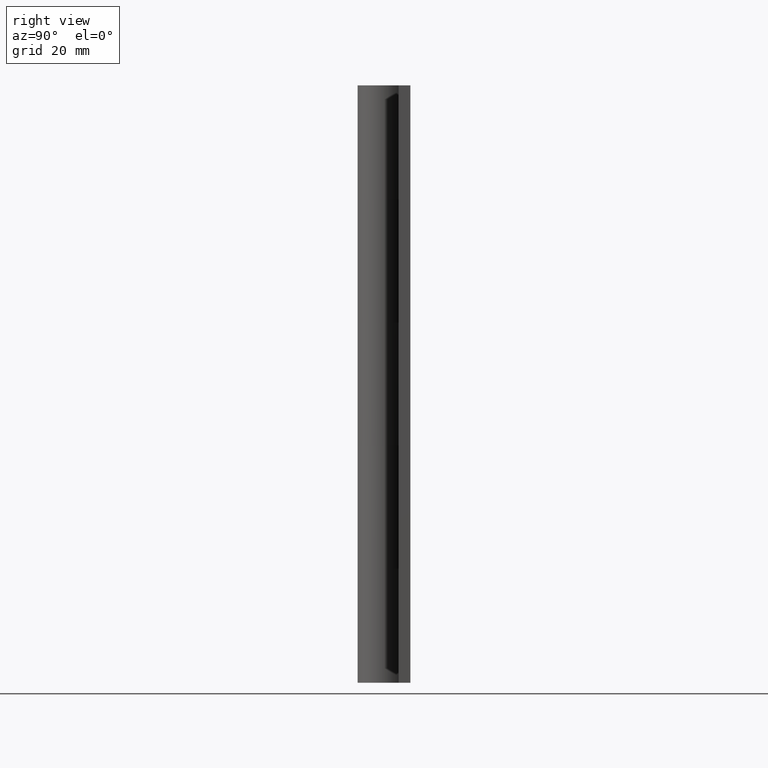
[diagram: clean part render]
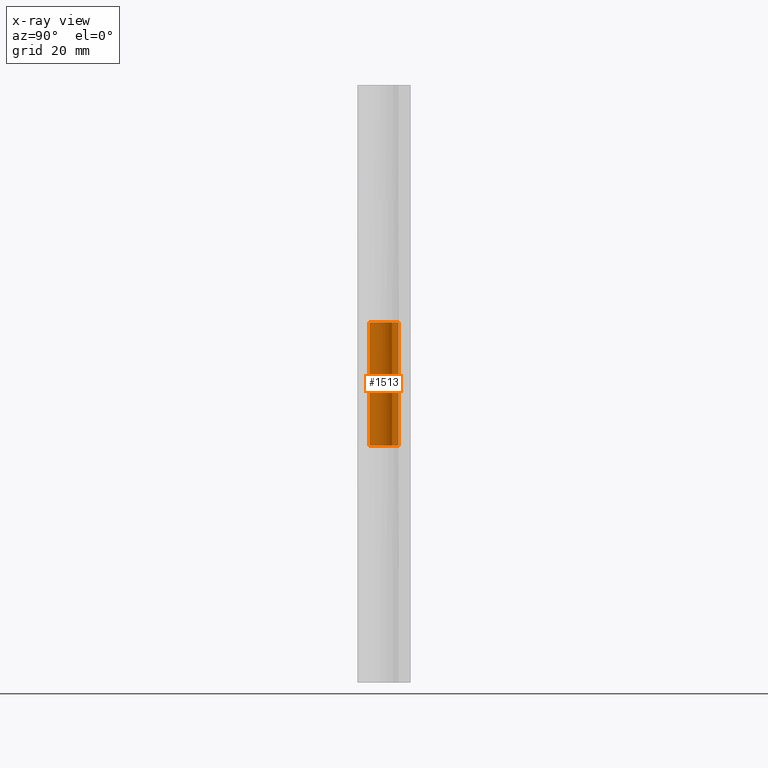
[diagram: x-ray — body ghosted, one internal face saturated and labeled with its STEP entity id]
A machine part, right view, then the same camera in x-ray: the body is ghosted and one INTERNAL B-rep face — a face not visible from any outside direction — is saturated and labeled: STEP entity #1513.
In plain terms, the highlighted face is a freeform B-spline surface patch.
Its self-contained STEP definition (entity closure, byte-faithful):
#802=CARTESIAN_POINT('',(0.0,2.500000000000000,40.500000000000000));
#803=VERTEX_POINT('',#802);
#804=CARTESIAN_POINT('',(2.096992261123030,1.361111111111110,40.500000000000000));
#805=VERTEX_POINT('',#804);
#806=CARTESIAN_POINT('',(0.0,2.500000000000000,40.500000000000000));
#807=CARTESIAN_POINT('',(-1.944329231287351,2.500000000000000,40.500000000000000));
#808=CARTESIAN_POINT('',(-2.423041577167015,0.615523773155829,40.500000000000000));
#809=CARTESIAN_POINT('',(-2.901753923046680,-1.268952453688345,40.500000000000000));
#810=CARTESIAN_POINT('',(-1.193151755273030,-2.196904387744011,40.500000000000000));
#811=CARTESIAN_POINT('',(0.515450412500619,-3.124856321799677,40.500000000000000));
#812=CARTESIAN_POINT('',(1.835510960884492,-1.697321275561255,40.500000000000000));
#813=CARTESIAN_POINT('',(3.155571509268365,-0.269786229322835,40.500000000000000));
#814=CARTESIAN_POINT('',(2.096992261123030,1.361111111111111,40.500000000000000));
#822=(BOUNDED_CURVE()B_SPLINE_CURVE(2,(#806,#807,#808,#809,#810,#811,#812,#813,#814),.UNSPECIFIED.,.F.,.U.)B_SPLINE_CURVE_WITH_KNOTS((3,2,2,2,3),(0.0,0.250000000000000,0.500000000000000,0.750000000000000,1.0),.UNSPECIFIED.)CURVE()GEOMETRIC_REPRESENTATION_ITEM()RATIONAL_B_SPLINE_CURVE((1.0,0.789369846542903,1.0,0.789369846542903,1.0,0.789369846542903,1.0,0.789369846542903,1.0))REPRESENTATION_ITEM(''));
#823=EDGE_CURVE('',#803,#805,#822,.T.);
#1007=CARTESIAN_POINT('',(2.096992261123030,1.361111111111110,61.500008000000001));
#1008=VERTEX_POINT('',#1007);
#1014=CARTESIAN_POINT('',(0.0,2.500000000000000,61.500008000000001));
#1015=VERTEX_POINT('',#1014);
#1016=CARTESIAN_POINT('',(2.096992261123031,1.361111111111110,61.500008000000001));
#1017=CARTESIAN_POINT('',(3.155571509268364,-0.269786229322836,61.500007999999987));
#1018=CARTESIAN_POINT('',(1.835510960884492,-1.697321275561256,61.500008000000001));
#1019=CARTESIAN_POINT('',(0.515450412500619,-3.124856321799678,61.500007999999987));
#1020=CARTESIAN_POINT('',(-1.193151755273031,-2.196904387744011,61.500008000000001));
#1021=CARTESIAN_POINT('',(-2.901753923046679,-1.268952453688345,61.500007999999987));
#1022=CARTESIAN_POINT('',(-2.423041577167015,0.615523773155827,61.500008000000001));
#1023=CARTESIAN_POINT('',(-1.944329231287350,2.500000000000000,61.500007999999987));
#1024=CARTESIAN_POINT('',(0.0,2.500000000000000,61.500008000000001));
#1032=(BOUNDED_CURVE()B_SPLINE_CURVE(2,(#1016,#1017,#1018,#1019,#1020,#1021,#1022,#1023,#1024),.UNSPECIFIED.,.F.,.U.)B_SPLINE_CURVE_WITH_KNOTS((3,2,2,2,3),(0.0,0.250000000000000,0.500000000000000,0.750000000000000,1.0),.UNSPECIFIED.)CURVE()GEOMETRIC_REPRESENTATION_ITEM()RATIONAL_B_SPLINE_CURVE((1.0,0.789369846542903,1.0,0.789369846542903,1.0,0.789369846542903,1.0,0.789369846542903,1.0))REPRESENTATION_ITEM(''));
#1033=EDGE_CURVE('',#1008,#1015,#1032,.T.);
#1456=CARTESIAN_POINT('',(2.096992261123030,1.361111111111110,61.500008000000001));
#1457=CARTESIAN_POINT('',(2.096992261123030,1.361111111111110,40.500000000000000));
#1458=QUASI_UNIFORM_CURVE('',1,(#1456,#1457),.UNSPECIFIED.,.F.,.U.);
#1459=EDGE_CURVE('',#1008,#805,#1458,.T.);
#1481=CARTESIAN_POINT('',(0.021816338745933,2.499904807660427,62.025008200000009));
#1482=CARTESIAN_POINT('',(0.021816338745933,2.499904807660427,39.961874794999993));
#1483=CARTESIAN_POINT('',(-3.065308999842232,2.526845742343785,62.025008200000002));
#1484=CARTESIAN_POINT('',(-3.065308999842232,2.526845742343785,39.961874794999986));
#1485=CARTESIAN_POINT('',(-2.449811761552073,-0.498419836042994,62.025008200000009));
#1486=CARTESIAN_POINT('',(-2.449811761552073,-0.498419836042994,39.961874794999993));
#1487=CARTESIAN_POINT('',(-1.834314523261914,-3.523685414429773,62.025008200000002));
#1488=CARTESIAN_POINT('',(-1.834314523261914,-3.523685414429773,39.961874794999986));
#1489=CARTESIAN_POINT('',(0.996872672313115,-2.292650185962810,62.025008200000009));
#1490=CARTESIAN_POINT('',(0.996872672313115,-2.292650185962810,39.961874794999993));
#1491=CARTESIAN_POINT('',(3.828059867888145,-1.061614957495846,62.025008200000002));
#1492=CARTESIAN_POINT('',(3.828059867888145,-1.061614957495846,39.961874794999986));
#1493=CARTESIAN_POINT('',(2.035288795890798,1.451757389277349,62.025008200000009));
#1494=CARTESIAN_POINT('',(2.035288795890798,1.451757389277349,39.961874794999993));
#1502=(BOUNDED_SURFACE()B_SPLINE_SURFACE(1,2,((#1481,#1483,#1485,#1487,#1489,#1491,#1493),(#1482,#1484,#1486,#1488,#1490,#1492,#1494)),.UNSPECIFIED.,.F.,.F.,.U.)B_SPLINE_SURFACE_WITH_KNOTS((2,2),(3,2,2,3),(0.0,22.063133405000020),(0.0,4.769755326981599,9.539510653963198,14.309265980944801),.UNSPECIFIED.)GEOMETRIC_REPRESENTATION_ITEM()RATIONAL_B_SPLINE_SURFACE(((1.0,0.629320391049838,1.0,0.629320391049838,1.0,0.629320391049838,1.0),(1.0,0.629320391049838,1.0,0.629320391049838,1.0,0.629320391049838,1.0)))REPRESENTATION_ITEM('')SURFACE());
#1503=ORIENTED_EDGE('',*,*,#823,.F.);
#1504=CARTESIAN_POINT('',(0.0,2.500000000000000,61.500008000000001));
#1505=CARTESIAN_POINT('',(0.0,2.500000000000000,40.500000000000000));
#1506=QUASI_UNIFORM_CURVE('',1,(#1504,#1505),.UNSPECIFIED.,.F.,.U.);
#1507=EDGE_CURVE('',#1015,#803,#1506,.T.);
#1508=ORIENTED_EDGE('',*,*,#1507,.F.);
#1509=ORIENTED_EDGE('',*,*,#1033,.F.);
#1510=ORIENTED_EDGE('',*,*,#1459,.T.);
#1511=EDGE_LOOP('',(#1503,#1508,#1509,#1510));
#1512=FACE_OUTER_BOUND('',#1511,.T.);
#1513=ADVANCED_FACE('',(#1512),#1502,.F.);